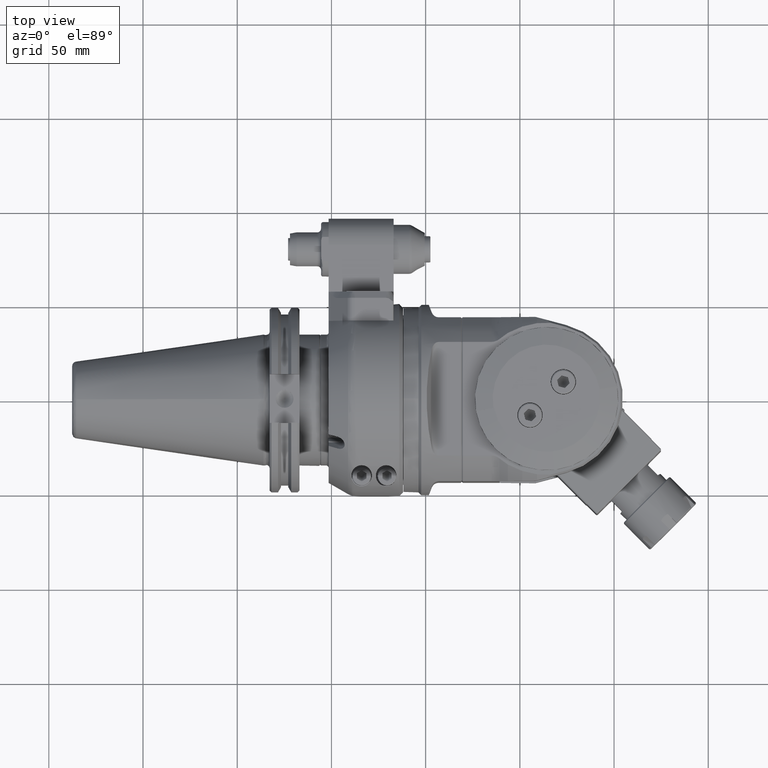
[diagram: clean part render]
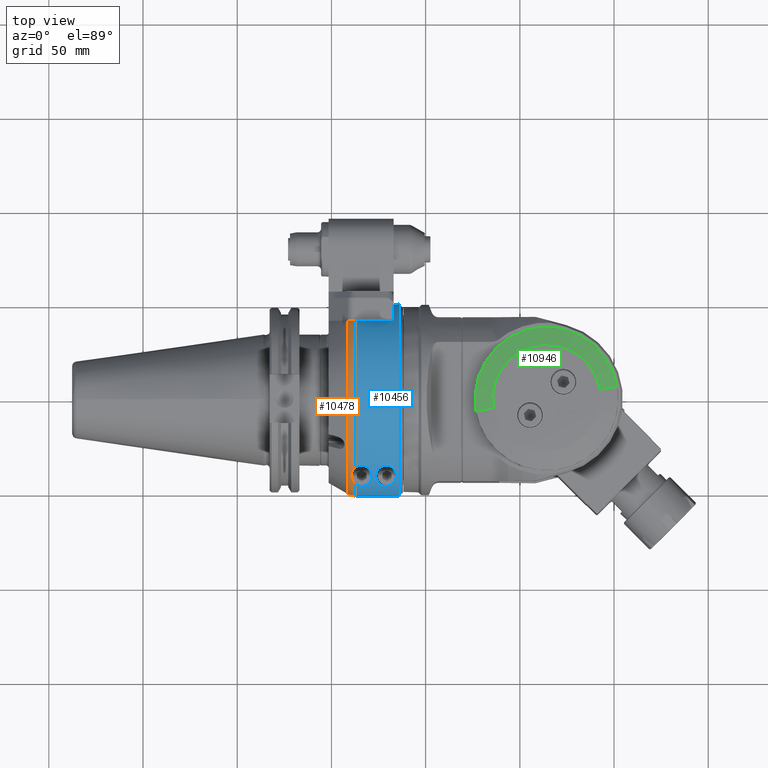
[diagram: same view with three faces highlighted in distinct colors, each labeled with its STEP entity id]
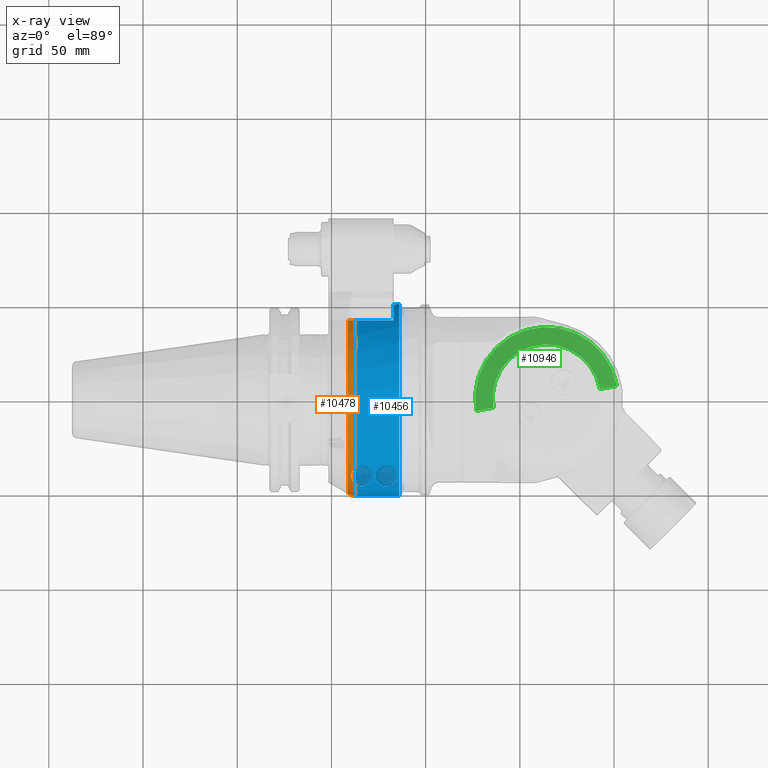
[diagram: x-ray of the same camera — body ghosted, the three highlighted faces saturated]
A machine part, top view with three faces highlighted in distinct colors.
The next image is the same camera in x-ray (body ghosted, the three faces saturated) — at least one of them is partly hidden behind the body in this view.
Their STEP definitions:

[orange] entity #10478 — the highlighted toroidal blend (fillet) surface has major radius 43 mm and minor (blend) radius 8 mm.
#104=TOROIDAL_SURFACE('',#11290,43.,8.);
#912=FACE_OUTER_BOUND('',#1565,.T.);
#1565=EDGE_LOOP('',(#7288,#7289,#7290,#7291,#7292,#7293));
#2282=CIRCLE('',#11244,51.);
#2283=CIRCLE('',#11245,51.);
#2304=CIRCLE('',#11287,49.92820323028);
#2745=B_SPLINE_CURVE_WITH_KNOTS('',3,(#15579,#15580,#15581,#15582,#15583,
#15584,#15585,#15586,#15587,#15588),.UNSPECIFIED.,.F.,.F.,(4,2,2,2,4),(-9.68559804021147,
-9.63577634006454,-9.4843525606202,-9.37005770955715,-9.2557628584941),
 .UNSPECIFIED.);
#2760=B_SPLINE_CURVE_WITH_KNOTS('',3,(#15898,#15899,#15900,#15901,#15902,
#15903,#15904,#15905),.UNSPECIFIED.,.F.,.F.,(4,2,2,4),(4.34441023881693,
4.44441523838835,4.59248867498487,4.74056211158139),.UNSPECIFIED.);
#2763=B_SPLINE_CURVE_WITH_KNOTS('',3,(#15937,#15938,#15939,#15940,#15941,
#15942,#15943,#15944,#15945,#15946,#15947,#15948,#15949,#15950,#15951,#15952),
 .UNSPECIFIED.,.F.,.F.,(4,3,3,3,3,4),(-9.34472443709596,-9.15576581563747,
-8.53592281537668,-8.19749167718073,-7.91960616501336,-7.85473194545352),
 .UNSPECIFIED.);
#4487=VERTEX_POINT('',#15544);
#4497=VERTEX_POINT('',#15575);
#4502=VERTEX_POINT('',#15599);
#4504=VERTEX_POINT('',#15608);
#4505=VERTEX_POINT('',#15635);
#4545=VERTEX_POINT('',#15886);
#5548=EDGE_CURVE('',#4497,#4487,#2745,.T.);
#5554=EDGE_CURVE('',#4502,#4487,#2282,.T.);
#5557=EDGE_CURVE('',#4505,#4504,#2283,.T.);
#5620=EDGE_CURVE('',#4545,#4505,#2760,.T.);
#5623=EDGE_CURVE('',#4497,#4545,#2304,.T.);
#5628=EDGE_CURVE('',#4504,#4502,#2763,.T.);
#7288=ORIENTED_EDGE('',*,*,#5623,.T.);
#7289=ORIENTED_EDGE('',*,*,#5620,.T.);
#7290=ORIENTED_EDGE('',*,*,#5557,.T.);
#7291=ORIENTED_EDGE('',*,*,#5628,.T.);
#7292=ORIENTED_EDGE('',*,*,#5554,.T.);
#7293=ORIENTED_EDGE('',*,*,#5548,.F.);
#10478=ADVANCED_FACE('',(#912),#104,.T.);
#11244=AXIS2_PLACEMENT_3D('',#15600,#12426,#12427);
#11245=AXIS2_PLACEMENT_3D('',#15636,#12428,#12429);
#11287=AXIS2_PLACEMENT_3D('',#15911,#12542,#12543);
#11290=AXIS2_PLACEMENT_3D('',#15936,#12548,#12549);
#12426=DIRECTION('center_axis',(-1.,0.,0.));
#12427=DIRECTION('ref_axis',(0.,-0.711205879844998,0.702983781088798));
#12428=DIRECTION('center_axis',(-1.,0.,0.));
#12429=DIRECTION('ref_axis',(0.,-0.999567380468613,0.0294117647058804));
#12542=DIRECTION('center_axis',(1.,0.,0.));
#12543=DIRECTION('ref_axis',(0.,0.836200730225418,0.548423503116412));
#12548=DIRECTION('center_axis',(1.,0.,0.));
#12549=DIRECTION('ref_axis',(0.,-1.,0.));
#15544=CARTESIAN_POINT('',(-37.23205080757,41.75,29.29057015492));
#15575=CARTESIAN_POINT('',(-41.23205080757,41.75,27.38180011986));
#15579=CARTESIAN_POINT('Ctrl Pts',(-41.2320508075675,41.75,27.3818001198576));
#15580=CARTESIAN_POINT('Ctrl Pts',(-41.1084978721799,41.75,27.5118698927609));
#15581=CARTESIAN_POINT('Ctrl Pts',(-40.9796012581369,41.75,27.63883358715));
#15582=CARTESIAN_POINT('Ctrl Pts',(-40.4412749376929,41.75,28.1311886381695));
#15583=CARTESIAN_POINT('Ctrl Pts',(-39.9932266664163,41.75,28.4521983127449));
#15584=CARTESIAN_POINT('Ctrl Pts',(-39.2119237728328,41.75,28.8694287521605));
#15585=CARTESIAN_POINT('Ctrl Pts',(-38.8258618631201,41.75,29.0288082766981));
#15586=CARTESIAN_POINT('Ctrl Pts',(-38.0264941442551,41.75,29.2396724058848));
#15587=CARTESIAN_POINT('Ctrl Pts',(-37.6130336444468,41.75,29.290570154915));
#15588=CARTESIAN_POINT('Ctrl Pts',(-37.23205080757,41.75,29.290570154915));
#15599=CARTESIAN_POINT('',(-37.23205080757,-36.27149987209,35.85217283553));
#15600=CARTESIAN_POINT('Origin',(-37.23205080757,0.,0.));
#15608=CARTESIAN_POINT('',(-37.23205080757,-45.1718026933,23.67505525733));
#15635=CARTESIAN_POINT('',(-37.2320508231036,-50.9779364044793,1.499999980309));
#15636=CARTESIAN_POINT('Origin',(-37.23205080757,0.,0.));
#15886=CARTESIAN_POINT('',(-41.2320587089715,-49.9056612221311,1.50000006858959));
#15898=CARTESIAN_POINT('Ctrl Pts',(-41.2320587100669,-49.9056612240274,
1.5));
#15899=CARTESIAN_POINT('Ctrl Pts',(-40.9199628642827,-50.0859316928166,
1.5));
#15900=CARTESIAN_POINT('Ctrl Pts',(-40.6009646113261,-50.2413262775005,
1.5));
#15901=CARTESIAN_POINT('Ctrl Pts',(-39.8370100654999,-50.5578441661684,
1.5));
#15902=CARTESIAN_POINT('Ctrl Pts',(-39.3203684112507,-50.7191785472564,
1.5));
#15903=CARTESIAN_POINT('Ctrl Pts',(-38.2646778846743,-50.9292248693063,
1.5));
#15904=CARTESIAN_POINT('Ctrl Pts',(-37.7256289314938,-50.9779364038993,
1.5));
#15905=CARTESIAN_POINT('Ctrl Pts',(-37.23205080757,-50.9779364038993,1.5));
#15911=CARTESIAN_POINT('Origin',(-41.23205080757,0.,0.));
#15936=CARTESIAN_POINT('Origin',(-37.23205080757,0.,0.));
#15937=CARTESIAN_POINT('Ctrl Pts',(-37.2320508075727,-45.1718026933004,
23.6750552573282));
#15938=CARTESIAN_POINT('Ctrl Pts',(-37.6059523067415,-44.9002459459361,
24.1931832058645));
#15939=CARTESIAN_POINT('Ctrl Pts',(-37.9420066961396,-44.583821938807,24.718802925503));
#15940=CARTESIAN_POINT('Ctrl Pts',(-38.2317635357579,-44.2347948006096,
25.2564932996317));
#15941=CARTESIAN_POINT('Ctrl Pts',(-39.1822560162215,-43.0898773216244,
27.0202848225526));
#15942=CARTESIAN_POINT('Ctrl Pts',(-39.5913735244697,-41.6682943531802,
28.8794189915673));
#15943=CARTESIAN_POINT('Ctrl Pts',(-39.4830876369283,-40.2906640836273,
30.7375607372434));
#15944=CARTESIAN_POINT('Ctrl Pts',(-39.4239640908758,-39.5384849351303,
31.7520967175706));
#15945=CARTESIAN_POINT('Ctrl Pts',(-39.2001167152273,-38.7666121290655,
32.7926546956175));
#15946=CARTESIAN_POINT('Ctrl Pts',(-38.8239051275744,-38.0796938038292,
33.6844936512119));
#15947=CARTESIAN_POINT('Ctrl Pts',(-38.5149981213353,-37.5156657665659,
34.4167818391937));
#15948=CARTESIAN_POINT('Ctrl Pts',(-38.1276341386855,-37.0238735561015,
35.0318289883221));
#15949=CARTESIAN_POINT('Ctrl Pts',(-37.6160859153108,-36.5775081079181,
35.5266834858267));
#15950=CARTESIAN_POINT('Ctrl Pts',(-37.4966615829668,-36.4733011276279,
35.6422105569248));
#15951=CARTESIAN_POINT('Ctrl Pts',(-37.368565930287,-36.3706479171666,35.751865154858));
#15952=CARTESIAN_POINT('Ctrl Pts',(-37.2320508075659,-36.2714998720946,
35.8521728355289));

[blue] entity #10456 — the highlighted cylindrical surface (partial cylindrical patch) has radius 51 mm, axis along (1, 0, 0).
#136=FACE_BOUND('',#1539,.T.);
#890=FACE_OUTER_BOUND('',#1538,.T.);
#1538=EDGE_LOOP('',(#7152,#7153,#7154,#7155,#7156,#7157,#7158,#7159,#7160,
#7161,#7162));
#1539=EDGE_LOOP('',(#7163,#7164));
#2279=CIRCLE('',#11241,51.);
#2280=CIRCLE('',#11242,51.);
#2281=CIRCLE('',#11243,51.);
#2282=CIRCLE('',#11244,51.);
#2283=CIRCLE('',#11245,51.);
#2743=B_SPLINE_CURVE_WITH_KNOTS('',3,(#15507,#15508,#15509,#15510,#15511,
#15512,#15513,#15514,#15515,#15516,#15517,#15518,#15519,#15520,#15521,#15522,
#15523,#15524),.UNSPECIFIED.,.F.,.F.,(4,2,2,2,2,2,2,2,4),(1.24497996375057,
1.57211089183856,1.89924181992655,2.10031433028339,2.30138684064023,2.50245935099707,
2.70353186135391,3.0306627894419,3.35779371752989),.UNSPECIFIED.);
#2746=B_SPLINE_CURVE_WITH_KNOTS('',3,(#15602,#15603,#15604,#15605,#15606,
#15607),.UNSPECIFIED.,.F.,.F.,(4,2,4),(-0.351622839102922,-0.201072510356838,
0.),.UNSPECIFIED.);
#2747=B_SPLINE_CURVE_WITH_KNOTS('',3,(#15609,#15610,#15611,#15612,#15613,
#15614,#15615,#15616,#15617,#15618,#15619,#15620,#15621,#15622,#15623,#15624,
#15625,#15626,#15627,#15628,#15629,#15630,#15631,#15632,#15633,#15634),
 .UNSPECIFIED.,.F.,.F.,(4,2,2,2,2,2,2,2,2,2,2,2,4),(0.,0.201072510356838,
0.402145020713677,0.729275948801668,1.05640687688966,1.45814522272358,1.85988356855749,
2.08063520459886,2.19101102261954,2.30138684064023,2.41176265866091,2.52213847668159,
2.7154535046118),.UNSPECIFIED.);
#2748=B_SPLINE_CURVE_WITH_KNOTS('',3,(#15638,#15639,#15640,#15641,#15642,
#15643,#15644,#15645,#15646,#15647,#15648,#15649,#15650,#15651,#15652,#15653,
#15654,#15655,#15656,#15657,#15658,#15659,#15660),.UNSPECIFIED.,.F.,.F.,
(4,2,2,2,2,3,2,2,2,2,4),(-1.24497996375057,-0.843241617916652,-0.441503272082734,
-0.220751636041367,-0.110375818020684,0.,0.110375818020684,0.220751636041367,
0.441503272082734,0.843241617916652,1.24497996375057),.UNSPECIFIED.);
#2850=LINE('',#15545,#3666);
#2852=LINE('',#15549,#3668);
#2858=LINE('',#15596,#3674);
#2859=LINE('',#15637,#3675);
#3666=VECTOR('',#12407,20.23205080757);
#3668=VECTOR('',#12409,20.23205080757);
#3674=VECTOR('',#12421,23.23206191748);
#3675=VECTOR('',#12430,23.23206611221);
#4477=VERTEX_POINT('',#15503);
#4479=VERTEX_POINT('',#15506);
#4486=VERTEX_POINT('',#15543);
#4487=VERTEX_POINT('',#15544);
#4488=VERTEX_POINT('',#15546);
#4489=VERTEX_POINT('',#15548);
#4499=VERTEX_POINT('',#15592);
#4500=VERTEX_POINT('',#15593);
#4501=VERTEX_POINT('',#15595);
#4502=VERTEX_POINT('',#15599);
#4503=VERTEX_POINT('',#15601);
#4504=VERTEX_POINT('',#15608);
#4505=VERTEX_POINT('',#15635);
#5527=EDGE_CURVE('',#4479,#4477,#2743,.T.);
#5537=EDGE_CURVE('',#4486,#4487,#2850,.T.);
#5539=EDGE_CURVE('',#4489,#4488,#2852,.T.);
#5550=EDGE_CURVE('',#4499,#4500,#2279,.T.);
#5551=EDGE_CURVE('',#4499,#4501,#2858,.T.);
#5552=EDGE_CURVE('',#4489,#4501,#2280,.T.);
#5553=EDGE_CURVE('',#4486,#4488,#2281,.T.);
#5554=EDGE_CURVE('',#4502,#4487,#2282,.T.);
#5555=EDGE_CURVE('',#4502,#4503,#2746,.T.);
#5556=EDGE_CURVE('',#4503,#4504,#2747,.T.);
#5557=EDGE_CURVE('',#4505,#4504,#2283,.T.);
#5558=EDGE_CURVE('',#4505,#4500,#2859,.T.);
#5559=EDGE_CURVE('',#4477,#4479,#2748,.T.);
#7152=ORIENTED_EDGE('',*,*,#5550,.F.);
#7153=ORIENTED_EDGE('',*,*,#5551,.T.);
#7154=ORIENTED_EDGE('',*,*,#5552,.F.);
#7155=ORIENTED_EDGE('',*,*,#5539,.T.);
#7156=ORIENTED_EDGE('',*,*,#5553,.F.);
#7157=ORIENTED_EDGE('',*,*,#5537,.T.);
#7158=ORIENTED_EDGE('',*,*,#5554,.F.);
#7159=ORIENTED_EDGE('',*,*,#5555,.T.);
#7160=ORIENTED_EDGE('',*,*,#5556,.T.);
#7161=ORIENTED_EDGE('',*,*,#5557,.F.);
#7162=ORIENTED_EDGE('',*,*,#5558,.T.);
#7163=ORIENTED_EDGE('',*,*,#5559,.T.);
#7164=ORIENTED_EDGE('',*,*,#5527,.T.);
#10319=CYLINDRICAL_SURFACE('',#11240,51.);
#10456=ADVANCED_FACE('',(#890,#136),#10319,.T.);
#11240=AXIS2_PLACEMENT_3D('',#15591,#12417,#12418);
#11241=AXIS2_PLACEMENT_3D('',#15594,#12419,#12420);
#11242=AXIS2_PLACEMENT_3D('',#15597,#12422,#12423);
#11243=AXIS2_PLACEMENT_3D('',#15598,#12424,#12425);
#11244=AXIS2_PLACEMENT_3D('',#15600,#12426,#12427);
#11245=AXIS2_PLACEMENT_3D('',#15636,#12428,#12429);
#12407=DIRECTION('',(-1.,0.,0.));
#12409=DIRECTION('',(1.,0.,0.));
#12417=DIRECTION('center_axis',(1.,0.,0.));
#12418=DIRECTION('ref_axis',(0.,1.,1.05873409698834E-10));
#12419=DIRECTION('center_axis',(1.,0.,0.));
#12420=DIRECTION('ref_axis',(0.,1.,0.));
#12421=DIRECTION('',(-1.,-3.620724304585E-11,1.230523343791E-9));
#12422=DIRECTION('center_axis',(-1.,0.,0.));
#12423=DIRECTION('ref_axis',(0.,0.818627450980411,-0.574324904998308));
#12424=DIRECTION('center_axis',(-1.,0.,0.));
#12425=DIRECTION('ref_axis',(0.,1.,0.));
#12426=DIRECTION('center_axis',(-1.,0.,0.));
#12427=DIRECTION('ref_axis',(0.,-0.711205879844998,0.702983781088798));
#12428=DIRECTION('center_axis',(-1.,0.,0.));
#12429=DIRECTION('ref_axis',(0.,-0.999567380468613,0.0294117647058804));
#12430=DIRECTION('',(1.,4.9878538981E-11,1.695142412605E-9));
#15503=CARTESIAN_POINT('',(-15.5,-40.7216512827,30.70418728464));
#15506=CARTESIAN_POINT('',(-26.5,-40.7216512827,30.7041872846388));
#15507=CARTESIAN_POINT('Ctrl Pts',(-26.5,-40.7216512827,30.7041872846388));
#15508=CARTESIAN_POINT('Ctrl Pts',(-26.5,-40.0651617871045,31.5748612439451));
#15509=CARTESIAN_POINT('Ctrl Pts',(-26.3775309176086,-39.319256727814,32.5000944024137));
#15510=CARTESIAN_POINT('Ctrl Pts',(-25.7586754272403,-37.8511872002494,
34.1986505928683));
#15511=CARTESIAN_POINT('Ctrl Pts',(-25.2627488095064,-37.1297545962508,
34.9727734951554));
#15512=CARTESIAN_POINT('Ctrl Pts',(-24.149351972259,-36.1782586100401,35.9500095679527));
#15513=CARTESIAN_POINT('Ctrl Pts',(-23.6039156243507,-35.8317714924385,
36.2931969488346));
#15514=CARTESIAN_POINT('Ctrl Pts',(-22.364786222781,-35.3524177755747,36.760284817991));
#15515=CARTESIAN_POINT('Ctrl Pts',(-21.6702417011895,-35.2216512827,36.8840789626077));
#15516=CARTESIAN_POINT('Ctrl Pts',(-20.3297582988105,-35.2216512827,36.8840789626077));
#15517=CARTESIAN_POINT('Ctrl Pts',(-19.635213777219,-35.3524177755747,36.760284817991));
#15518=CARTESIAN_POINT('Ctrl Pts',(-18.3960843756493,-35.8317714924385,
36.2931969488346));
#15519=CARTESIAN_POINT('Ctrl Pts',(-17.850648027741,-36.1782586100401,35.9500095679527));
#15520=CARTESIAN_POINT('Ctrl Pts',(-16.7372511904936,-37.1297545962508,
34.9727734951554));
#15521=CARTESIAN_POINT('Ctrl Pts',(-16.2413245727597,-37.8511872002494,
34.1986505928683));
#15522=CARTESIAN_POINT('Ctrl Pts',(-15.6224690823914,-39.319256727814,32.5000944024137));
#15523=CARTESIAN_POINT('Ctrl Pts',(-15.5,-40.0651617871045,31.5748612439451));
#15524=CARTESIAN_POINT('Ctrl Pts',(-15.5,-40.7216512827,30.7041872846388));
#15543=CARTESIAN_POINT('',(-17.,41.75,29.29057015492));
#15544=CARTESIAN_POINT('',(-37.23205080757,41.75,29.29057015492));
#15545=CARTESIAN_POINT('',(-17.,41.75,29.29057015492));
#15546=CARTESIAN_POINT('',(-17.,41.75,-29.29057015492));
#15548=CARTESIAN_POINT('',(-37.23205080757,41.75,-29.29057015492));
#15549=CARTESIAN_POINT('',(-37.23205080757,41.75,-29.29057015492));
#15591=CARTESIAN_POINT('Origin',(-43.,0.,0.));
#15592=CARTESIAN_POINT('',(-14.,-50.9779364039,-1.5));
#15593=CARTESIAN_POINT('',(-14.,-50.9779364039,1.5));
#15594=CARTESIAN_POINT('Origin',(-14.,0.,0.));
#15595=CARTESIAN_POINT('',(-37.2320508150874,-50.9779364043201,-1.49999998570621));
#15596=CARTESIAN_POINT('',(-14.,-50.9779364039,-1.5));
#15597=CARTESIAN_POINT('Origin',(-37.23205080757,0.,0.));
#15598=CARTESIAN_POINT('Origin',(-17.,0.,0.));
#15599=CARTESIAN_POINT('',(-37.23205080757,-36.27149987209,35.85217283553));
#15600=CARTESIAN_POINT('Origin',(-37.23205080757,0.,0.));
#15601=CARTESIAN_POINT('',(-34.,-35.2216512827,36.8840789626077));
#15602=CARTESIAN_POINT('Ctrl Pts',(-37.2320508075659,-36.2714998720946,
35.8521728355289));
#15603=CARTESIAN_POINT('Ctrl Pts',(-36.872037357752,-36.0100297211167,36.116701141561));
#15604=CARTESIAN_POINT('Ctrl Pts',(-36.44824163253,-35.7715494474255,36.3518780139684));
#15605=CARTESIAN_POINT('Ctrl Pts',(-35.364786222781,-35.3524177755747,36.760284817991));
#15606=CARTESIAN_POINT('Ctrl Pts',(-34.6702417011895,-35.2216512827,36.8840789626077));
#15607=CARTESIAN_POINT('Ctrl Pts',(-34.,-35.2216512827,36.8840789626077));
#15608=CARTESIAN_POINT('',(-37.23205080757,-45.1718026933,23.67505525733));
#15609=CARTESIAN_POINT('Ctrl Pts',(-34.,-35.2216512827,36.8840789626077));
#15610=CARTESIAN_POINT('Ctrl Pts',(-33.3297582988105,-35.2216512827,36.8840789626077));
#15611=CARTESIAN_POINT('Ctrl Pts',(-32.635213777219,-35.3524177755747,36.760284817991));
#15612=CARTESIAN_POINT('Ctrl Pts',(-31.3960843756493,-35.8317714924385,
36.2931969488346));
#15613=CARTESIAN_POINT('Ctrl Pts',(-30.850648027741,-36.1782586100401,35.9500095679527));
#15614=CARTESIAN_POINT('Ctrl Pts',(-29.7372511904936,-37.1297545962508,
34.9727734951554));
#15615=CARTESIAN_POINT('Ctrl Pts',(-29.2413245727597,-37.8511872002494,
34.1986505928683));
#15616=CARTESIAN_POINT('Ctrl Pts',(-28.6224690823914,-39.319256727814,32.5000944024137));
#15617=CARTESIAN_POINT('Ctrl Pts',(-28.5,-40.0651617871045,31.5748612439451));
#15618=CARTESIAN_POINT('Ctrl Pts',(-28.5,-41.5278636624324,29.6349422633357));
#15619=CARTESIAN_POINT('Ctrl Pts',(-28.6828935944427,-42.355228362554,28.4428786872814));
#15620=CARTESIAN_POINT('Ctrl Pts',(-29.4026147018995,-43.8528254301532,
26.0747465478085));
#15621=CARTESIAN_POINT('Ctrl Pts',(-29.9314939989374,-44.5246315328702,
24.8972647332227));
#15622=CARTESIAN_POINT('Ctrl Pts',(-31.001270294294,-45.3572445916551,23.326334884601));
#15623=CARTESIAN_POINT('Ctrl Pts',(-31.480842706606,-45.6482368635351,22.7481982089167));
#15624=CARTESIAN_POINT('Ctrl Pts',(-32.3308258147761,-45.9710043968678,
22.0845481334827));
#15625=CARTESIAN_POINT('Ctrl Pts',(-32.6354867073276,-46.0599916909384,
21.8974583438779));
#15626=CARTESIAN_POINT('Ctrl Pts',(-33.286197560497,-46.1851905126261,21.6321449190877));
#15627=CARTESIAN_POINT('Ctrl Pts',(-33.6320806065977,-46.2216512827,21.5536296873747));
#15628=CARTESIAN_POINT('Ctrl Pts',(-34.3679193934023,-46.2216512827,21.5536296873747));
#15629=CARTESIAN_POINT('Ctrl Pts',(-34.713802439503,-46.1851905126261,21.6321449190877));
#15630=CARTESIAN_POINT('Ctrl Pts',(-35.3645132926724,-46.0599916909384,
21.8974583438779));
#15631=CARTESIAN_POINT('Ctrl Pts',(-35.6691741852239,-45.9710043968678,
22.0845481334827));
#15632=CARTESIAN_POINT('Ctrl Pts',(-36.4487292658961,-45.6749807840842,
22.6932093917128));
#15633=CARTESIAN_POINT('Ctrl Pts',(-36.8782785168307,-45.4287400225037,
23.1848210334514));
#15634=CARTESIAN_POINT('Ctrl Pts',(-37.2320508075737,-45.1718026932997,
23.6750552573295));
#15635=CARTESIAN_POINT('',(-37.2320508231036,-50.9779364044793,1.499999980309));
#15636=CARTESIAN_POINT('Origin',(-37.23205080757,0.,0.));
#15637=CARTESIAN_POINT('',(-37.23206611221,-50.97793640506,1.499999960618));
#15638=CARTESIAN_POINT('Ctrl Pts',(-15.5,-40.7216512827,30.7041872846388));
#15639=CARTESIAN_POINT('Ctrl Pts',(-15.5,-41.5278636624324,29.6349422633357));
#15640=CARTESIAN_POINT('Ctrl Pts',(-15.6828935944427,-42.355228362554,28.4428786872814));
#15641=CARTESIAN_POINT('Ctrl Pts',(-16.4026147018995,-43.8528254301532,
26.0747465478085));
#15642=CARTESIAN_POINT('Ctrl Pts',(-16.9314939989374,-44.5246315328702,
24.8972647332227));
#15643=CARTESIAN_POINT('Ctrl Pts',(-18.001270294294,-45.3572445916551,23.326334884601));
#15644=CARTESIAN_POINT('Ctrl Pts',(-18.480842706606,-45.6482368635351,22.7481982089167));
#15645=CARTESIAN_POINT('Ctrl Pts',(-19.3308258147761,-45.9710043968678,
22.0845481334827));
#15646=CARTESIAN_POINT('Ctrl Pts',(-19.6354867073276,-46.0599916909384,
21.8974583438779));
#15647=CARTESIAN_POINT('Ctrl Pts',(-20.286197560497,-46.1851905126261,21.6321449190877));
#15648=CARTESIAN_POINT('Ctrl Pts',(-20.6320806065977,-46.2216512827,21.5536296873747));
#15649=CARTESIAN_POINT('Ctrl Pts',(-21.,-46.2216512827,21.5536296873747));
#15650=CARTESIAN_POINT('Ctrl Pts',(-21.3679193934023,-46.2216512827,21.5536296873747));
#15651=CARTESIAN_POINT('Ctrl Pts',(-21.713802439503,-46.1851905126261,21.6321449190877));
#15652=CARTESIAN_POINT('Ctrl Pts',(-22.3645132926724,-46.0599916909384,
21.8974583438779));
#15653=CARTESIAN_POINT('Ctrl Pts',(-22.6691741852239,-45.9710043968678,
22.0845481334827));
#15654=CARTESIAN_POINT('Ctrl Pts',(-23.519157293394,-45.6482368635351,22.7481982089167));
#15655=CARTESIAN_POINT('Ctrl Pts',(-23.998729705706,-45.3572445916551,23.326334884601));
#15656=CARTESIAN_POINT('Ctrl Pts',(-25.0685060010626,-44.5246315328702,
24.8972647332227));
#15657=CARTESIAN_POINT('Ctrl Pts',(-25.5973852981005,-43.8528254301532,
26.0747465478085));
#15658=CARTESIAN_POINT('Ctrl Pts',(-26.3171064055573,-42.355228362554,28.4428786872814));
#15659=CARTESIAN_POINT('Ctrl Pts',(-26.5,-41.5278636624324,29.6349422633357));
#15660=CARTESIAN_POINT('Ctrl Pts',(-26.5,-40.7216512827,30.7041872846388));

[green] entity #10946 — the highlighted conical surface has half-angle 75 deg.
#869=CONICAL_SURFACE('',#12119,33.33493649054,1.30899693899575);
#1380=FACE_OUTER_BOUND('',#2096,.T.);
#2096=EDGE_LOOP('',(#9616,#9617,#9618,#9619));
#2636=CIRCLE('',#12076,38.);
#2639=CIRCLE('',#12081,28.66987298108);
#3469=LINE('',#60006,#4285);
#3470=LINE('',#60008,#4286);
#4285=VECTOR('',#14786,9.65925826289064);
#4286=VECTOR('',#14789,9.65925826289064);
#5259=VERTEX_POINT('',#59840);
#5260=VERTEX_POINT('',#59842);
#5264=VERTEX_POINT('',#59854);
#5265=VERTEX_POINT('',#59856);
#6717=EDGE_CURVE('',#5260,#5259,#2636,.T.);
#6724=EDGE_CURVE('',#5264,#5265,#2639,.T.);
#6782=EDGE_CURVE('',#5265,#5259,#3469,.T.);
#6783=EDGE_CURVE('',#5264,#5260,#3470,.T.);
#9616=ORIENTED_EDGE('',*,*,#6717,.T.);
#9617=ORIENTED_EDGE('',*,*,#6782,.F.);
#9618=ORIENTED_EDGE('',*,*,#6724,.F.);
#9619=ORIENTED_EDGE('',*,*,#6783,.T.);
#10946=ADVANCED_FACE('',(#1380),#869,.T.);
#12076=AXIS2_PLACEMENT_3D('',#59843,#14665,#14666);
#12081=AXIS2_PLACEMENT_3D('',#59857,#14679,#14680);
#12119=AXIS2_PLACEMENT_3D('',#60007,#14787,#14788);
#14665=DIRECTION('center_axis',(0.,0.,-1.));
#14666=DIRECTION('ref_axis',(0.573576436351011,-0.819152044289016,0.));
#14679=DIRECTION('center_axis',(0.,0.,-1.));
#14680=DIRECTION('ref_axis',(0.573576436351011,-0.819152044289016,0.));
#14786=DIRECTION('',(-0.554032293222321,0.79124011523623,0.25881904510251));
#14787=DIRECTION('center_axis',(0.,0.,1.));
#14788=DIRECTION('ref_axis',(-0.819152044289214,-0.573576436350729,0.));
#14789=DIRECTION('',(0.554032293222321,-0.79124011523623,0.25881904510251));
#59840=CARTESIAN_POINT('',(85.20409541866,31.12777768298,-44.));
#59842=CARTESIAN_POINT('',(128.7959045813,-31.12777768298,-44.));
#59843=CARTESIAN_POINT('Origin',(107.,0.,-44.));
#59854=CARTESIAN_POINT('',(123.4443635751,-23.48498506196,-46.5));
#59856=CARTESIAN_POINT('',(90.55563642488,23.48498506196,-46.5));
#59857=CARTESIAN_POINT('Origin',(107.,0.,-46.5));
#60006=CARTESIAN_POINT('',(90.55563642488,23.48498506196,-46.5));
#60007=CARTESIAN_POINT('Origin',(107.,0.,-45.25));
#60008=CARTESIAN_POINT('',(123.4443635751,-23.48498506196,-46.5));